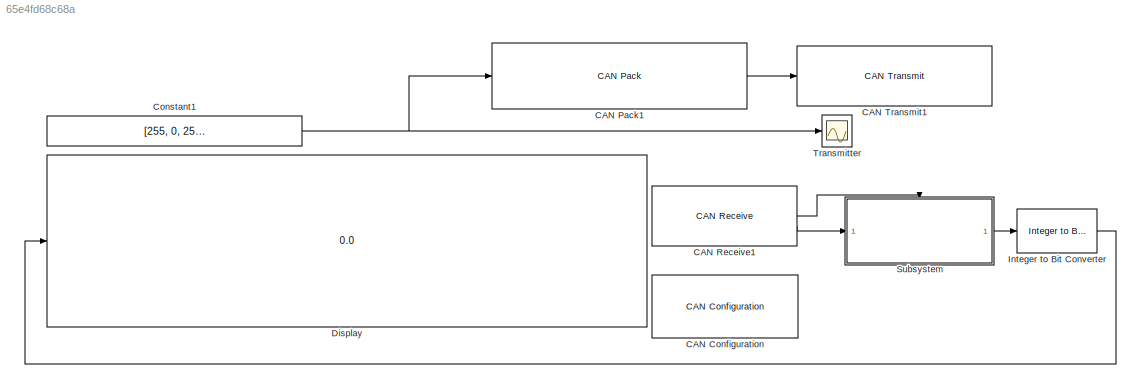
MODEL slx_65e4fd68c68a
KIND model
CONFIG AbsTol = auto
CONFIG EnableMultiTasking = off
CONFIG FixedStep = auto
CONFIG MaxStep = auto
CONFIG MinStep = auto
CONFIG RelTol = 1e-3
CONFIG SampleTimeConstraint = Unconstrained
CONFIG SolverName = VariableStepAuto
CONFIG StartTime = 0.0
CONFIG StopTime = 10.0
BLOCK [Reference] CAN Configuration  REF=canlib/CAN Configuration
  SourceBlock = canlib/CAN Configuration
  SourceType = CAN Configuration
BLOCK [Reference] CAN Pack1  REF=canmsglib/CAN Pack
  LibrarySourceBlock = canlib/CAN Pack
  SourceBlock = canmsglib/CAN Pack
  SourceType = CAN Pack
BLOCK [Reference] CAN Receive1  REF=canlib/CAN Receive
  SourceBlock = canlib/CAN Receive
  SourceType = CAN Receive
BLOCK [Reference] CAN Transmit1  REF=canlib/CAN Transmit
  SourceBlock = canlib/CAN Transmit
  SourceType = CAN Transmit
BLOCK [Constant] Constant1
  OutDataTypeStr = uint8
  SampleTime = 0.01
  Value = [255, 0, 255, 0, 255, 0, 255, 0]
BLOCK [Display] Display
  Decimation = 1
BLOCK [Reference] Integer to Bit Converter  REF=simulink/Logic and Bit
Operations/Integer to Bit
Converter
  SourceBlock = simulink/Logic and Bit\nOperations/Integer to Bit\nConverter
  SourceType = Integer to Bit Converter
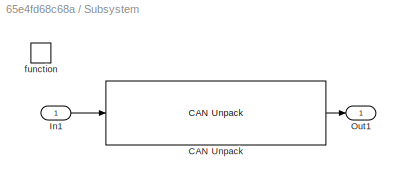
BLOCK [SubSystem] Subsystem
BLOCK [Reference] Subsystem/CAN Unpack  REF=canmsglib/CAN Unpack
  LibrarySourceBlock = canlib/CAN Unpack
  SourceBlock = canmsglib/CAN Unpack
  SourceType = CAN Unpack
BLOCK [Inport] Subsystem/In1
BLOCK [Outport] Subsystem/Out1
BLOCK [TriggerPort] Subsystem/function
  StatesWhenEnabling = held
  TriggerType = function-call
  VariantControl = (inherit)
BLOCK [Scope] Transmitter
  Floating = off
  NumInputPorts = 1
  ScopeSpecificationString = Simulink.scopes.TimeScopeBlockCfg('CurrentConfiguration', extmgr.ConfigurationSet(extmgr.Configuration('Core','General UI',true),extmgr.Configuration('Core','Source UI',true),extmgr.Configuration('Sources','WiredSimulink',true,'DataLoggingVariableName','ScopeData2','DataLogging',true,'DataLoggingSaveFormat','Array'),extmgr.Configuration('Visuals','Time Domain',true,'SerializedDisplays',{struct('Mi...<+1615ch>
LINE CAN Pack1:1 -> CAN Transmit1:1
LINE CAN Receive1:1 -> Subsystem:trigger
LINE CAN Receive1:2 -> Subsystem:1
NET Constant1:1 -> CAN Pack1:1, Transmitter:1
LINE Integer to Bit Converter:1 -> Display:1
LINE Subsystem/CAN Unpack:1 -> Subsystem/Out1:1
LINE Subsystem/In1:1 -> Subsystem/CAN Unpack:1
LINE Subsystem:1 -> Integer to Bit Converter:1
note: NET lines group one-source signal fan-out (src -> all destinations, sorted); 1:1 wires keep LINE
